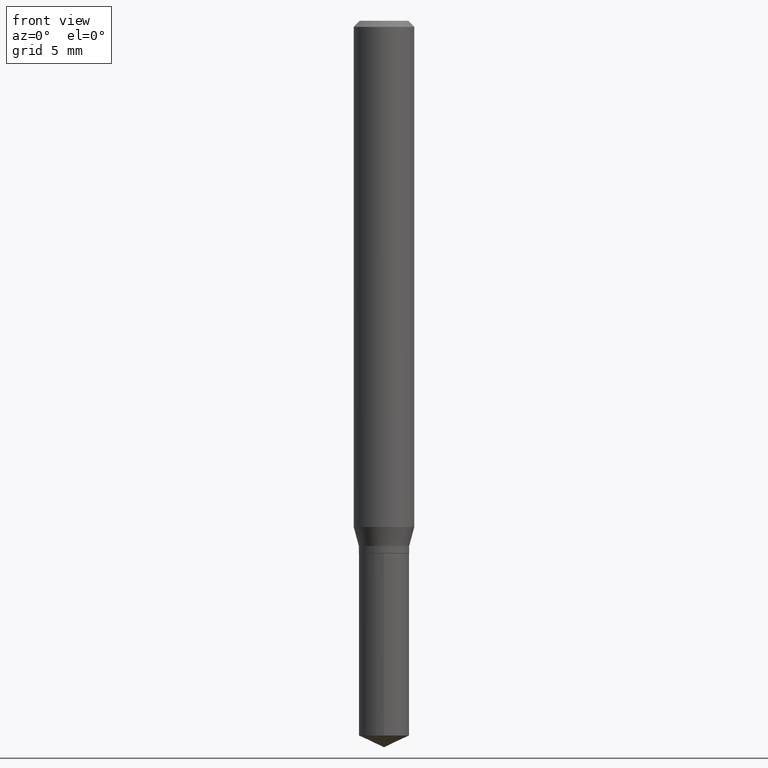
[diagram: clean part render]
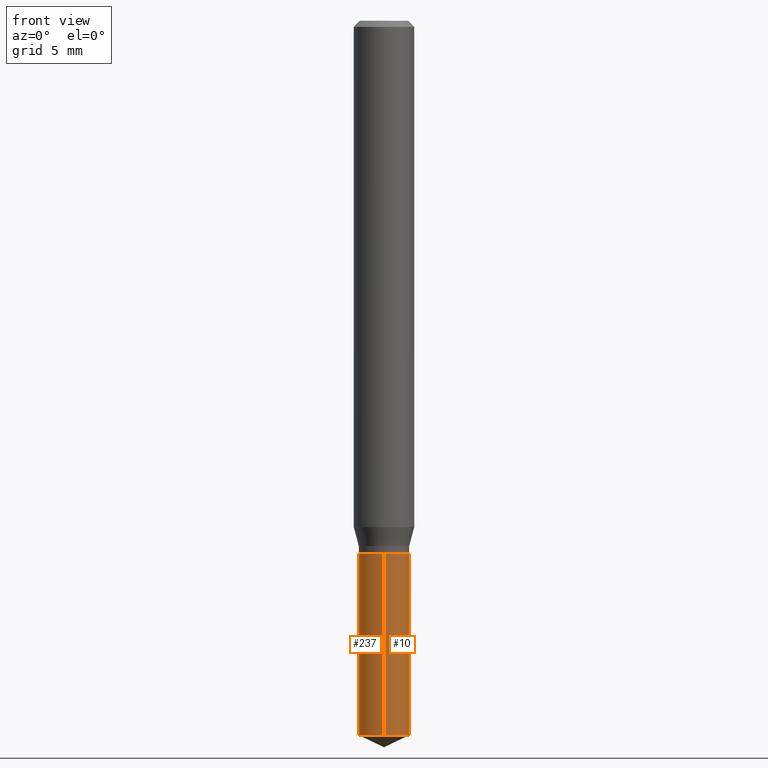
[diagram: same view with one multi-face feature highlighted, each face labeled with its STEP entity id]
A machine part, front view. The highlighted faces form ONE feature: a constant-radius fillet chain: 2 tangent blend faces with common blend radius 1.3208 mm. The faces share edges in the B-rep.
Their STEP definitions:
[1] entity #237 (Cylinder):
#19 = AXIS2_PLACEMENT_3D ( 'NONE', #71, #151, #110 ) ;
#20 = DIRECTION ( 'NONE',  ( -6.982962677686266711E-15, -1.000000000000000000, 2.626776916984868919E-15 ) ) ;
#38 = DIRECTION ( 'NONE',  ( -2.445399690415121810E-29, 3.491580316559632610E-15, 1.000000000000000000 ) ) ;
#47 = VERTEX_POINT ( 'NONE', #178 ) ;
#51 = ORIENTED_EDGE ( 'NONE', *, *, #372, .T. ) ;
#53 = CYLINDRICAL_SURFACE ( 'NONE', #389, 0.05199999999999999067 ) ;
#59 = DIRECTION ( 'NONE',  ( -2.445399690415121810E-29, 3.491580316559632610E-15, 1.000000000000000000 ) ) ;
#68 = CARTESIAN_POINT ( 'NONE',  ( -3.631140592396589372E-16, -0.05200000000000383482, -1.099999999999999867 ) ) ;
#71 = CARTESIAN_POINT ( 'NONE',  ( 3.608879515619396949E-29, -5.152597766036214313E-15, -1.475752001775940458 ) ) ;
#97 = CARTESIAN_POINT ( 'NONE',  ( 2.690015686803650369E-29, -3.840629472727460101E-15, -1.100000000000000089 ) ) ;
#110 = DIRECTION ( 'NONE',  ( -6.982962677686266711E-15, -1.000000000000000000, 5.253553833969737838E-15 ) ) ;
#114 = VECTOR ( 'NONE', #59, 39.37007874015748143 ) ;
#135 = AXIS2_PLACEMENT_3D ( 'NONE', #431, #362, #20 ) ;
#149 = VECTOR ( 'NONE', #38, 39.37007874015748143 ) ;
#151 = DIRECTION ( 'NONE',  ( -2.445399690415121530E-29, 3.491580316559632610E-15, 1.000000000000000000 ) ) ;
#178 = CARTESIAN_POINT ( 'NONE',  ( 3.694822225952880222E-16, 0.05199999999999482120, -1.475752001775940681 ) ) ;
#196 = LINE ( 'NONE', #228, #149 ) ;
#198 = EDGE_CURVE ( 'NONE', #355, #479, #400, .T. ) ;
#206 = CARTESIAN_POINT ( 'NONE',  ( -3.631140592396496188E-16, -0.05200000000000513933, -1.475752001775940014 ) ) ;
#214 = EDGE_CURVE ( 'NONE', #47, #355, #366, .T. ) ;
#228 = CARTESIAN_POINT ( 'NONE',  ( -3.631140592396589372E-16, -0.05200000000000383482, -1.099999999999999867 ) ) ;
#237 = ADVANCED_FACE ( 'NONE', ( #285 ), #53, .T. ) ;
#273 = ORIENTED_EDGE ( 'NONE', *, *, #338, .T. ) ;
#283 = DIRECTION ( 'NONE',  ( -2.445399690415121530E-29, 3.491580316559632610E-15, 1.000000000000000000 ) ) ;
#285 = FACE_OUTER_BOUND ( 'NONE', #440, .T. ) ;
#293 = VERTEX_POINT ( 'NONE', #206 ) ;
#319 = DIRECTION ( 'NONE',  ( -6.982962677686266711E-15, -1.000000000000000000, 2.626776916984868919E-15 ) ) ;
#332 = ORIENTED_EDGE ( 'NONE', *, *, #214, .F. ) ;
#338 = EDGE_CURVE ( 'NONE', #293, #479, #196, .T. ) ;
#353 = ORIENTED_EDGE ( 'NONE', *, *, #198, .F. ) ;
#355 = VERTEX_POINT ( 'NONE', #412 ) ;
#362 = DIRECTION ( 'NONE',  ( -2.445399690415121530E-29, 3.491580316559632610E-15, 1.000000000000000000 ) ) ;
#366 = LINE ( 'NONE', #397, #114 ) ;
#372 = EDGE_CURVE ( 'NONE', #47, #293, #386, .T. ) ;
#386 = CIRCLE ( 'NONE', #19, 0.05199999999999999067 ) ;
#389 = AXIS2_PLACEMENT_3D ( 'NONE', #97, #283, #319 ) ;
#397 = CARTESIAN_POINT ( 'NONE',  ( 3.694822225952788517E-16, 0.05199999999999615347, -1.100000000000000089 ) ) ;
#400 = CIRCLE ( 'NONE', #135, 0.05199999999999999067 ) ;
#412 = CARTESIAN_POINT ( 'NONE',  ( 3.694822225952881208E-16, 0.05199999999999615347, -1.100000000000000089 ) ) ;
#431 = CARTESIAN_POINT ( 'NONE',  ( 2.690015686803650369E-29, -3.840629472727460101E-15, -1.100000000000000089 ) ) ;
#440 = EDGE_LOOP ( 'NONE', ( #332, #51, #273, #353 ) ) ;
#479 = VERTEX_POINT ( 'NONE', #68 ) ;
[2] entity #10 (Cylinder):
#8 = CIRCLE ( 'NONE', #127, 0.05199999999999999067 ) ;
#10 = ADVANCED_FACE ( 'NONE', ( #482 ), #255, .T. ) ;
#38 = DIRECTION ( 'NONE',  ( -2.445399690415121810E-29, 3.491580316559632610E-15, 1.000000000000000000 ) ) ;
#47 = VERTEX_POINT ( 'NONE', #178 ) ;
#50 = DIRECTION ( 'NONE',  ( -6.982962677686266711E-15, -1.000000000000000000, 2.626776916984868919E-15 ) ) ;
#56 = DIRECTION ( 'NONE',  ( -6.982962677686266711E-15, -1.000000000000000000, 2.626776916984868919E-15 ) ) ;
#59 = DIRECTION ( 'NONE',  ( -2.445399690415121810E-29, 3.491580316559632610E-15, 1.000000000000000000 ) ) ;
#68 = CARTESIAN_POINT ( 'NONE',  ( -3.631140592396589372E-16, -0.05200000000000383482, -1.099999999999999867 ) ) ;
#76 = EDGE_CURVE ( 'NONE', #293, #47, #281, .T. ) ;
#114 = VECTOR ( 'NONE', #59, 39.37007874015748143 ) ;
#117 = ORIENTED_EDGE ( 'NONE', *, *, #338, .F. ) ;
#124 = ORIENTED_EDGE ( 'NONE', *, *, #76, .T. ) ;
#127 = AXIS2_PLACEMENT_3D ( 'NONE', #391, #248, #50 ) ;
#131 = DIRECTION ( 'NONE',  ( -6.982962677686266711E-15, -1.000000000000000000, 5.253553833969737838E-15 ) ) ;
#149 = VECTOR ( 'NONE', #38, 39.37007874015748143 ) ;
#178 = CARTESIAN_POINT ( 'NONE',  ( 3.694822225952880222E-16, 0.05199999999999482120, -1.475752001775940681 ) ) ;
#196 = LINE ( 'NONE', #228, #149 ) ;
#206 = CARTESIAN_POINT ( 'NONE',  ( -3.631140592396496188E-16, -0.05200000000000513933, -1.475752001775940014 ) ) ;
#214 = EDGE_CURVE ( 'NONE', #47, #355, #366, .T. ) ;
#228 = CARTESIAN_POINT ( 'NONE',  ( -3.631140592396589372E-16, -0.05200000000000383482, -1.099999999999999867 ) ) ;
#248 = DIRECTION ( 'NONE',  ( -2.445399690415121530E-29, 3.491580316559632610E-15, 1.000000000000000000 ) ) ;
#255 = CYLINDRICAL_SURFACE ( 'NONE', #409, 0.05199999999999999067 ) ;
#257 = DIRECTION ( 'NONE',  ( -2.445399690415121530E-29, 3.491580316559632610E-15, 1.000000000000000000 ) ) ;
#281 = CIRCLE ( 'NONE', #461, 0.05199999999999999067 ) ;
#290 = EDGE_CURVE ( 'NONE', #479, #355, #8, .T. ) ;
#293 = VERTEX_POINT ( 'NONE', #206 ) ;
#312 = EDGE_LOOP ( 'NONE', ( #124, #351, #464, #117 ) ) ;
#338 = EDGE_CURVE ( 'NONE', #293, #479, #196, .T. ) ;
#351 = ORIENTED_EDGE ( 'NONE', *, *, #214, .T. ) ;
#355 = VERTEX_POINT ( 'NONE', #412 ) ;
#365 = CARTESIAN_POINT ( 'NONE',  ( 2.690015686803650369E-29, -3.840629472727460101E-15, -1.100000000000000089 ) ) ;
#366 = LINE ( 'NONE', #397, #114 ) ;
#391 = CARTESIAN_POINT ( 'NONE',  ( 2.690015686803650369E-29, -3.840629472727460101E-15, -1.100000000000000089 ) ) ;
#397 = CARTESIAN_POINT ( 'NONE',  ( 3.694822225952788517E-16, 0.05199999999999615347, -1.100000000000000089 ) ) ;
#398 = DIRECTION ( 'NONE',  ( -2.445399690415121530E-29, 3.491580316559632610E-15, 1.000000000000000000 ) ) ;
#409 = AXIS2_PLACEMENT_3D ( 'NONE', #365, #257, #56 ) ;
#412 = CARTESIAN_POINT ( 'NONE',  ( 3.694822225952881208E-16, 0.05199999999999615347, -1.100000000000000089 ) ) ;
#461 = AXIS2_PLACEMENT_3D ( 'NONE', #477, #398, #131 ) ;
#464 = ORIENTED_EDGE ( 'NONE', *, *, #290, .F. ) ;
#477 = CARTESIAN_POINT ( 'NONE',  ( 3.608879515619396949E-29, -5.152597766036214313E-15, -1.475752001775940458 ) ) ;
#479 = VERTEX_POINT ( 'NONE', #68 ) ;
#482 = FACE_OUTER_BOUND ( 'NONE', #312, .T. ) ;